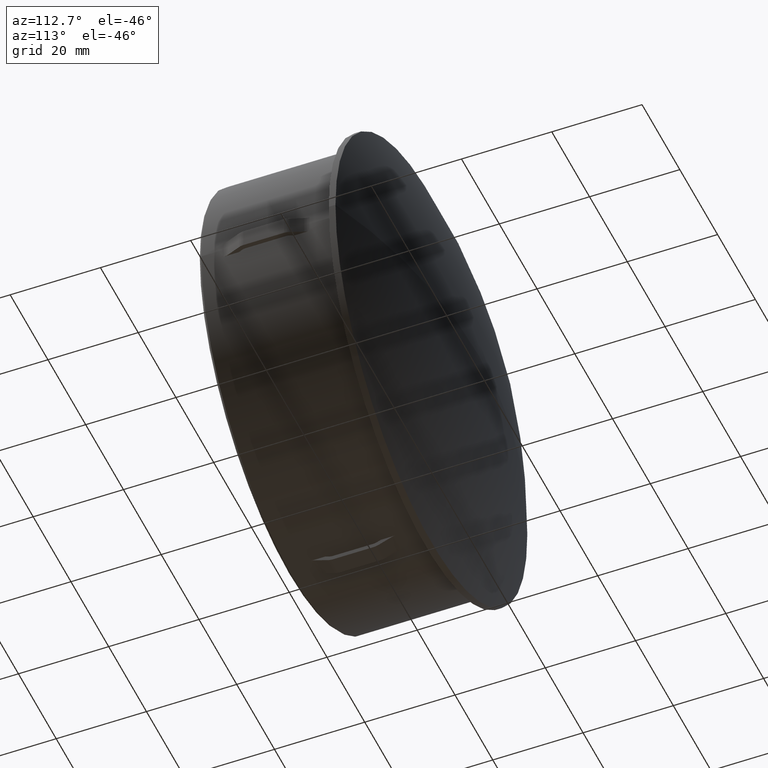
[diagram: clean part render]
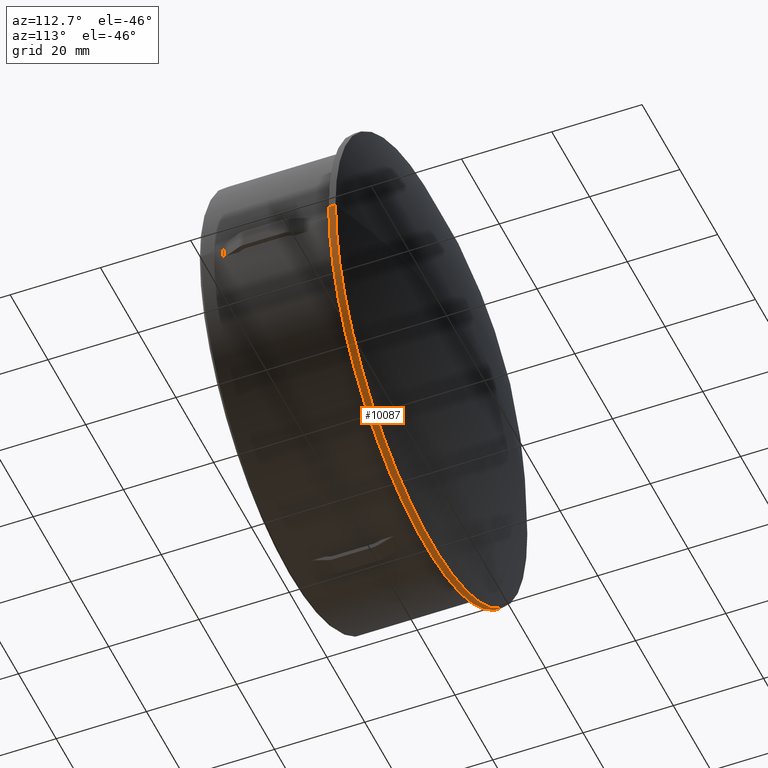
[diagram: same view with one face highlighted and labeled with its STEP entity id]
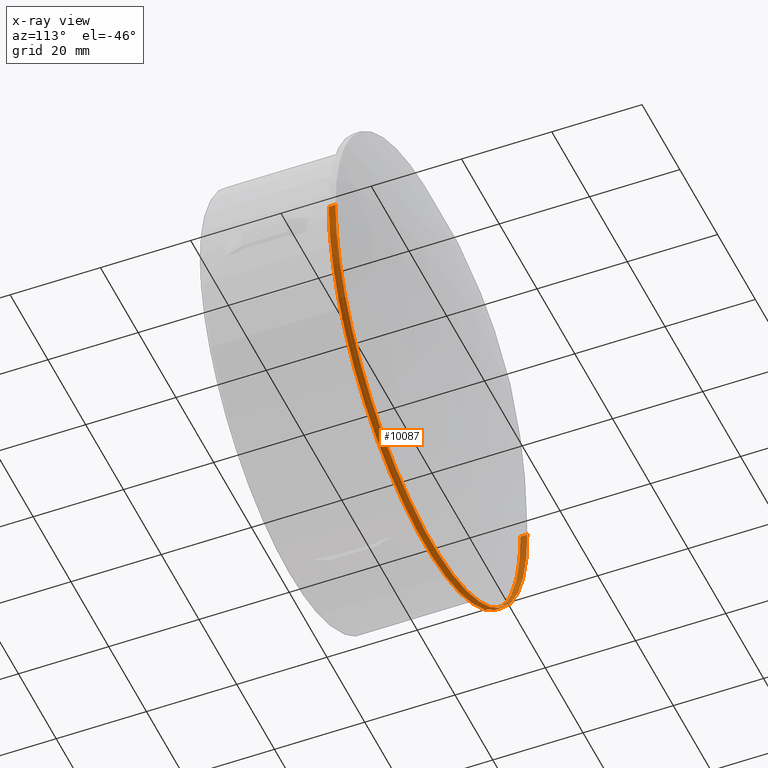
[diagram: x-ray of the same camera — body ghosted, the highlighted face saturated]
A machine part, auxiliary view. The second image highlights one B-rep face of the part: STEP entity #10087.
The next image is the same camera in x-ray: the body ghosted, the highlighted face saturated — about 1% of this face is hidden behind the body in this view.
In plain terms, the highlighted cylindrical surface (partial cylindrical patch) has radius 50.8 mm, axis along (0, -1, -0).
Its self-contained STEP definition (entity closure, byte-faithful):
#940 = CARTESIAN_POINT ( 'NONE',  ( 50.79999999999999700, 30.00000000000000000, 0.0000000000000000000 ) ) ;
#1586 = LINE ( 'NONE', #8103, #5352 ) ;
#1883 = ORIENTED_EDGE ( 'NONE', *, *, #10055, .F. ) ;
#2132 = CARTESIAN_POINT ( 'NONE',  ( 6.203454192732423100E-014, 29.99999999999973400, 0.0000000000000000000 ) ) ;
#2907 = VERTEX_POINT ( 'NONE', #3666 ) ;
#3084 = CARTESIAN_POINT ( 'NONE',  ( 5.428022418640887400E-014, 31.49999999999973700, 0.0000000000000000000 ) ) ;
#3407 = DIRECTION ( 'NONE',  ( 5.169545160610235800E-015, -1.000000000000000000, -0.0000000000000000000 ) ) ;
#3513 = VERTEX_POINT ( 'NONE', #4898 ) ;
#3666 = CARTESIAN_POINT ( 'NONE',  ( 50.79999999999999700, 31.49999999999999300, 0.0000000000000000000 ) ) ;
#3984 = DIRECTION ( 'NONE',  ( 5.169545160610235800E-015, -1.000000000000000000, -0.0000000000000000000 ) ) ;
#4232 = DIRECTION ( 'NONE',  ( 5.169545160610235800E-015, -1.000000000000000000, -0.0000000000000000000 ) ) ;
#4245 = EDGE_CURVE ( 'NONE', #10078, #2907, #8763, .T. ) ;
#4898 = CARTESIAN_POINT ( 'NONE',  ( -50.79999999999987600, 29.99999999999947100, 6.221205739668547400E-015 ) ) ;
#5352 = VECTOR ( 'NONE', #13787, 1000.000000000000000 ) ;
#5746 = AXIS2_PLACEMENT_3D ( 'NONE', #2132, #11259, #13461 ) ;
#7319 = CIRCLE ( 'NONE', #5746, 50.79999999999993300 ) ;
#8064 = AXIS2_PLACEMENT_3D ( 'NONE', #13742, #3407, #11356 ) ;
#8103 = CARTESIAN_POINT ( 'NONE',  ( -50.79999999999993300, 40.49999999999973000, 6.221205739668547400E-015 ) ) ;
#8749 = CYLINDRICAL_SURFACE ( 'NONE', #8064, 50.79999999999994000 ) ;
#8763 = CIRCLE ( 'NONE', #14125, 50.79999999999994000 ) ;
#9287 = LINE ( 'NONE', #14455, #13737 ) ;
#9300 = CARTESIAN_POINT ( 'NONE',  ( -50.80000000000055100, 31.49999999999947400, 6.221205739668546600E-015 ) ) ;
#9946 = DIRECTION ( 'NONE',  ( 1.000000000000000000, 5.190511187962106200E-015, 0.0000000000000000000 ) ) ;
#10055 = EDGE_CURVE ( 'NONE', #3513, #12668, #7319, .T. ) ;
#10078 = VERTEX_POINT ( 'NONE', #9300 ) ;
#10087 = ADVANCED_FACE ( 'NONE', ( #13038 ), #8749, .T. ) ;
#10141 = EDGE_CURVE ( 'NONE', #10078, #3513, #1586, .T. ) ;
#10795 = EDGE_CURVE ( 'NONE', #2907, #12668, #9287, .T. ) ;
#11259 = DIRECTION ( 'NONE',  ( 5.169545160610235800E-015, -1.000000000000000000, -0.0000000000000000000 ) ) ;
#11277 = ORIENTED_EDGE ( 'NONE', *, *, #10141, .F. ) ;
#11356 = DIRECTION ( 'NONE',  ( 1.000000000000000000, 5.190511187962106200E-015, 0.0000000000000000000 ) ) ;
#12668 = VERTEX_POINT ( 'NONE', #940 ) ;
#12946 = ORIENTED_EDGE ( 'NONE', *, *, #10795, .T. ) ;
#13038 = FACE_OUTER_BOUND ( 'NONE', #13857, .T. ) ;
#13461 = DIRECTION ( 'NONE',  ( 1.000000000000000000, 5.190511187962107000E-015, 0.0000000000000000000 ) ) ;
#13737 = VECTOR ( 'NONE', #3984, 1000.000000000000000 ) ;
#13742 = CARTESIAN_POINT ( 'NONE',  ( 7.754317740915432600E-015, 40.49999999999999300, 0.0000000000000000000 ) ) ;
#13787 = DIRECTION ( 'NONE',  ( 5.169545160610235800E-015, -1.000000000000000000, -0.0000000000000000000 ) ) ;
#13857 = EDGE_LOOP ( 'NONE', ( #11277, #14533, #12946, #1883 ) ) ;
#14125 = AXIS2_PLACEMENT_3D ( 'NONE', #3084, #4232, #9946 ) ;
#14455 = CARTESIAN_POINT ( 'NONE',  ( 50.79999999999994700, 40.50000000000025600, 0.0000000000000000000 ) ) ;
#14533 = ORIENTED_EDGE ( 'NONE', *, *, #4245, .T. ) ;